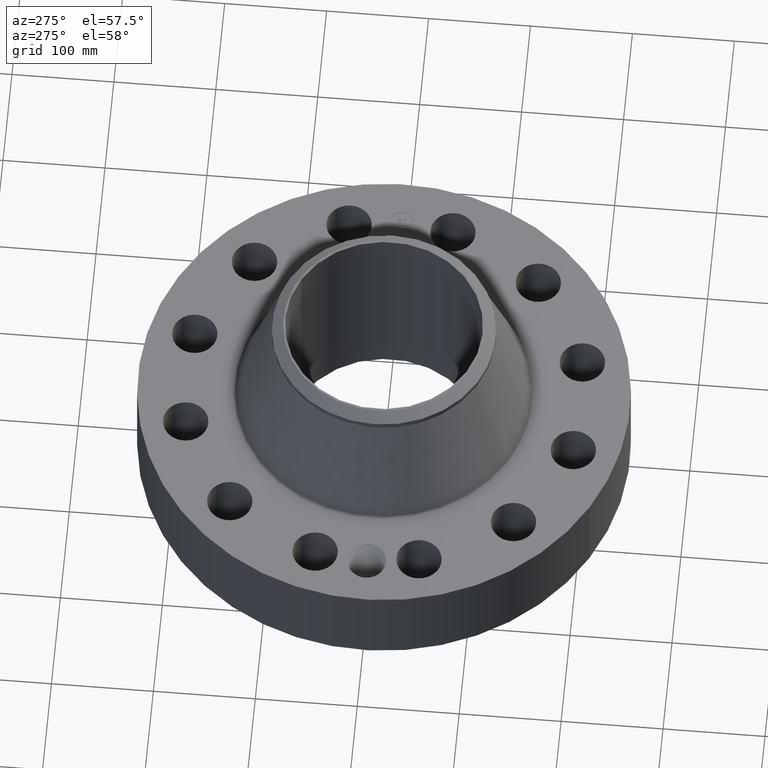
[diagram: clean part render]
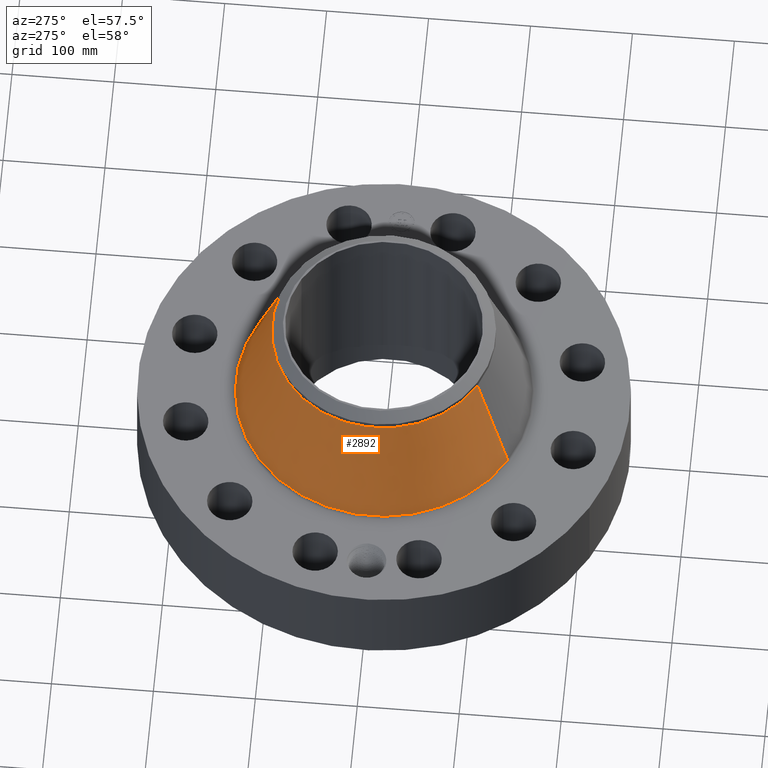
[diagram: same view with one face highlighted and labeled with its STEP entity id]
A machine part, auxiliary view. The second image highlights one B-rep face of the part: STEP entity #2892.
In plain terms, the highlighted conical surface has half-angle 18.869 deg.
Its self-contained STEP definition (entity closure, byte-faithful):
#2155=AXIS2_PLACEMENT_3D('Circle Axis2P3D',#2153,#2154,$) ;
#2853=AXIS2_PLACEMENT_3D('Cone Axis2P3D',#2850,#2851,#2852) ;
#2883=AXIS2_PLACEMENT_3D('Circle Axis2P3D',#2881,#2882,$) ;
#2131=CARTESIAN_POINT('Vertex',(2.74339313973,5.02174745811,3.95119062613)) ;
#2138=CARTESIAN_POINT('Vertex',(-2.74339313973,-5.02174745811,3.95119062613)) ;
#2153=CARTESIAN_POINT('Axis2P3D Location',(0.,0.,3.95119062613)) ;
#2850=CARTESIAN_POINT('Axis2P3D Location',(0.,0.,8.068617164)) ;
#2855=CARTESIAN_POINT('Line Origine',(2.40605716941,4.40425810634,6.00990389507)) ;
#2859=CARTESIAN_POINT('Vertex',(2.06872119909,3.78676875457,8.068617164)) ;
#2866=CARTESIAN_POINT('Vertex',(-2.06872119909,-3.78676875457,8.068617164)) ;
#2869=CARTESIAN_POINT('Line Origine',(-2.40605716941,-4.40425810634,6.00990389507)) ;
#2881=CARTESIAN_POINT('Axis2P3D Location',(0.,0.,8.068617164)) ;
#2154=DIRECTION('Axis2P3D Direction',(0.,0.,-0.0393700787402)) ;
#2851=DIRECTION('Axis2P3D Direction',(0.,0.,-0.0393700787402)) ;
#2852=DIRECTION('Axis2P3D XDirection',(-0.0188750212049,-0.0345504945626,0.)) ;
#2856=DIRECTION('Vector Direction',(0.00610439795833,0.0111740255112,-0.0372542692781)) ;
#2870=DIRECTION('Vector Direction',(-0.00610439795833,-0.0111740255112,-0.0372542692781)) ;
#2882=DIRECTION('Axis2P3D Direction',(0.,0.,-0.0393700787402)) ;
#2857=VECTOR('Line Direction',#2856,0.0393700787402) ;
#2871=VECTOR('Line Direction',#2870,0.0393700787402) ;
#2887=ORIENTED_EDGE('',*,*,#2157,.F.) ;
#2888=ORIENTED_EDGE('',*,*,#2873,.T.) ;
#2889=ORIENTED_EDGE('',*,*,#2885,.T.) ;
#2890=ORIENTED_EDGE('',*,*,#2861,.F.) ;
#2892=ADVANCED_FACE('PartBody',(#2891),#2854,.T.) ;
#2156=CIRCLE('generated circle',#2155,5.72225073308) ;
#2884=CIRCLE('generated circle',#2883,4.31500000002) ;
#2854=CONICAL_SURFACE('Cone',#2853,4.31500000002,0.329332474681) ;
#2157=EDGE_CURVE('',#2139,#2132,#2156,.T.) ;
#2861=EDGE_CURVE('',#2132,#2860,#2858,.F.) ;
#2873=EDGE_CURVE('',#2139,#2867,#2872,.F.) ;
#2885=EDGE_CURVE('',#2867,#2860,#2884,.T.) ;
#2886=EDGE_LOOP('',(#2887,#2888,#2889,#2890)) ;
#2891=FACE_OUTER_BOUND('',#2886,.T.) ;
#2858=LINE('Line',#2855,#2857) ;
#2872=LINE('Line',#2869,#2871) ;
#2132=VERTEX_POINT('',#2131) ;
#2139=VERTEX_POINT('',#2138) ;
#2860=VERTEX_POINT('',#2859) ;
#2867=VERTEX_POINT('',#2866) ;